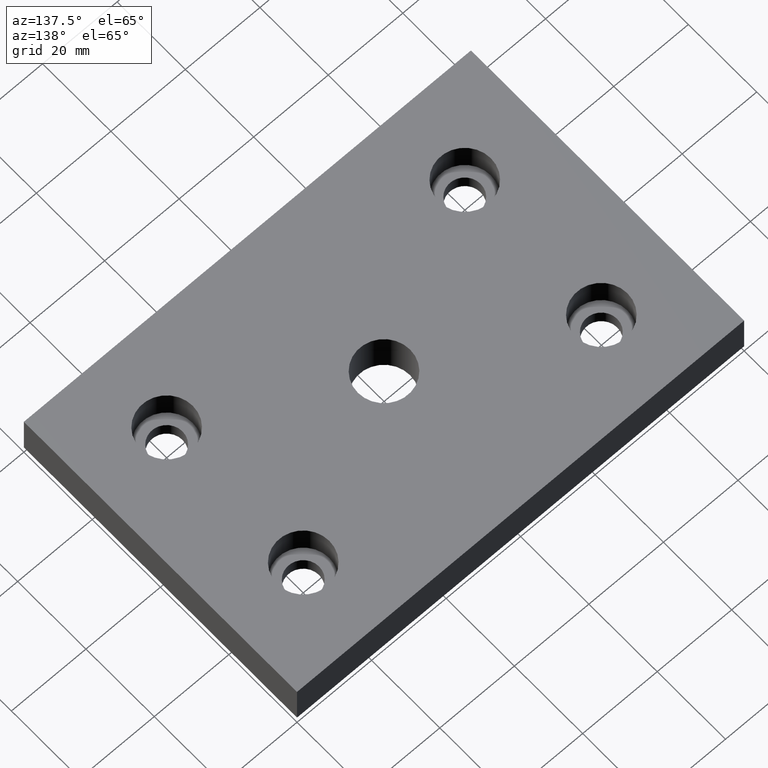
[diagram: clean part render]
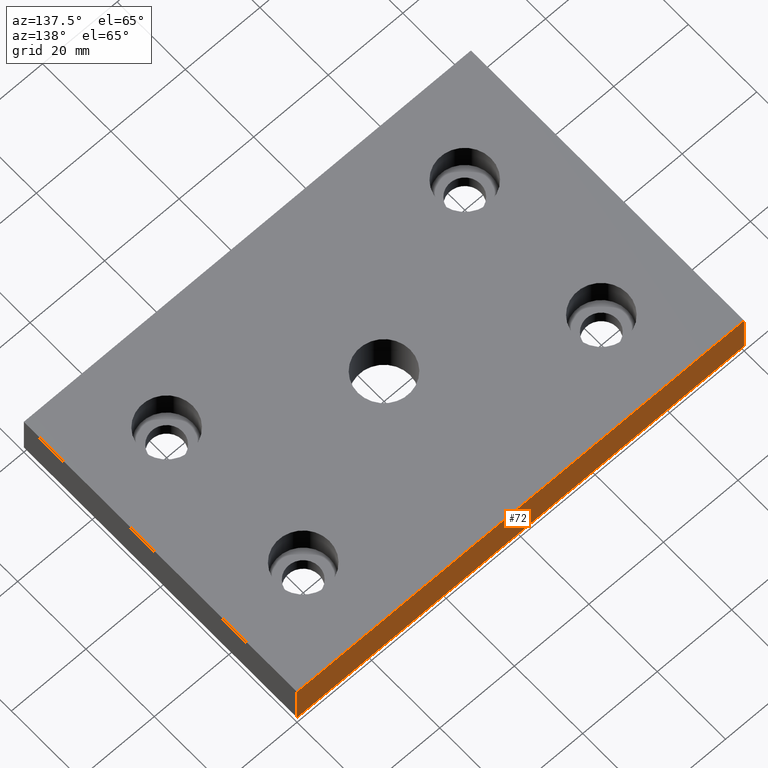
[diagram: same view with one face highlighted and labeled with its STEP entity id]
A machine part, auxiliary view. The second image highlights one B-rep face of the part: STEP entity #72.
In plain terms, the highlighted planar face has unit normal (0, -1, 0).
Its self-contained STEP definition (entity closure, byte-faithful):
#17=CARTESIAN_POINT('',(59.999986679760013,39.999991119840161,0.0));
#18=VERTEX_POINT('',#17);
#25=CARTESIAN_POINT('',(59.999986679760013,39.999991119840161,12.0));
#26=VERTEX_POINT('',#25);
#27=CARTESIAN_POINT('',(59.999986679760013,39.999991119840161,12.0));
#28=DIRECTION('',(0.0,0.0,-1.0));
#29=VECTOR('',#28,12.0);
#30=LINE('',#27,#29);
#31=EDGE_CURVE('',#26,#18,#30,.T.);
#42=CARTESIAN_POINT('',(59.999986679760013,39.999991119840161,12.0));
#43=DIRECTION('',(0.0,-1.0,0.0));
#44=DIRECTION('',(-1.0,0.0,0.0));
#45=AXIS2_PLACEMENT_3D('',#42,#43,#44);
#46=PLANE('',#45);
#47=ORIENTED_EDGE('',*,*,#31,.T.);
#48=CARTESIAN_POINT('',(-59.999986679760013,39.999991119840161,0.0));
#49=VERTEX_POINT('',#48);
#50=CARTESIAN_POINT('',(59.999986679760013,39.999991119840161,0.0));
#51=DIRECTION('',(-1.0,0.0,0.0));
#52=VECTOR('',#51,119.999973359520030);
#53=LINE('',#50,#52);
#54=EDGE_CURVE('',#18,#49,#53,.T.);
#55=ORIENTED_EDGE('',*,*,#54,.T.);
#56=CARTESIAN_POINT('',(-59.999986679760013,39.999991119840161,12.0));
#57=VERTEX_POINT('',#56);
#58=CARTESIAN_POINT('',(-59.999986679760013,39.999991119840161,12.0));
#59=DIRECTION('',(0.0,0.0,-1.0));
#60=VECTOR('',#59,12.0);
#61=LINE('',#58,#60);
#62=EDGE_CURVE('',#57,#49,#61,.T.);
#63=ORIENTED_EDGE('',*,*,#62,.F.);
#64=CARTESIAN_POINT('',(59.999986679760013,39.999991119840161,12.0));
#65=DIRECTION('',(-1.0,0.0,0.0));
#66=VECTOR('',#65,119.999973359520030);
#67=LINE('',#64,#66);
#68=EDGE_CURVE('',#26,#57,#67,.T.);
#69=ORIENTED_EDGE('',*,*,#68,.F.);
#70=EDGE_LOOP('',(#47,#55,#63,#69));
#71=FACE_OUTER_BOUND('',#70,.T.);
#72=ADVANCED_FACE('',(#71),#46,.F.);